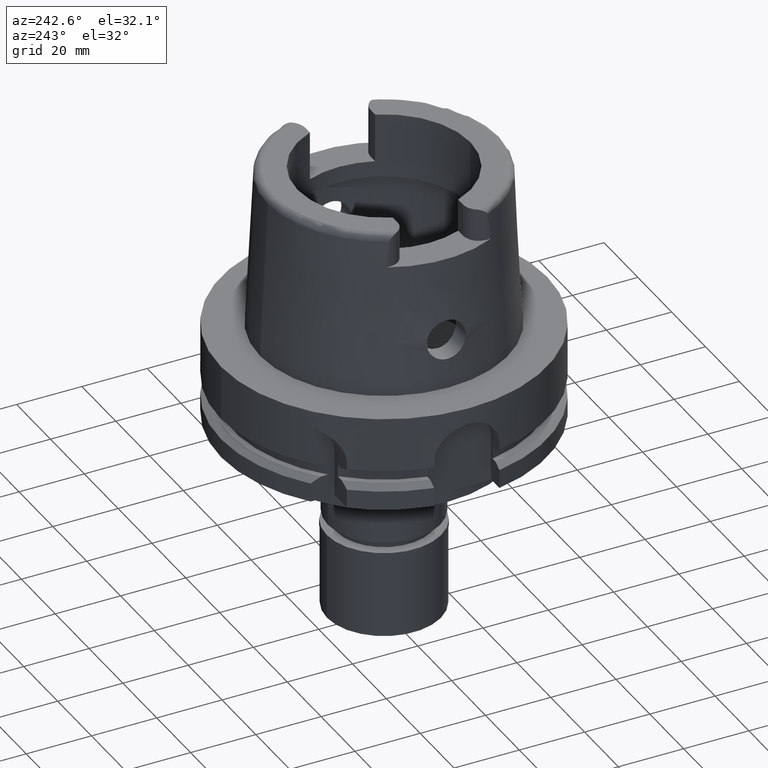
[diagram: clean part render]
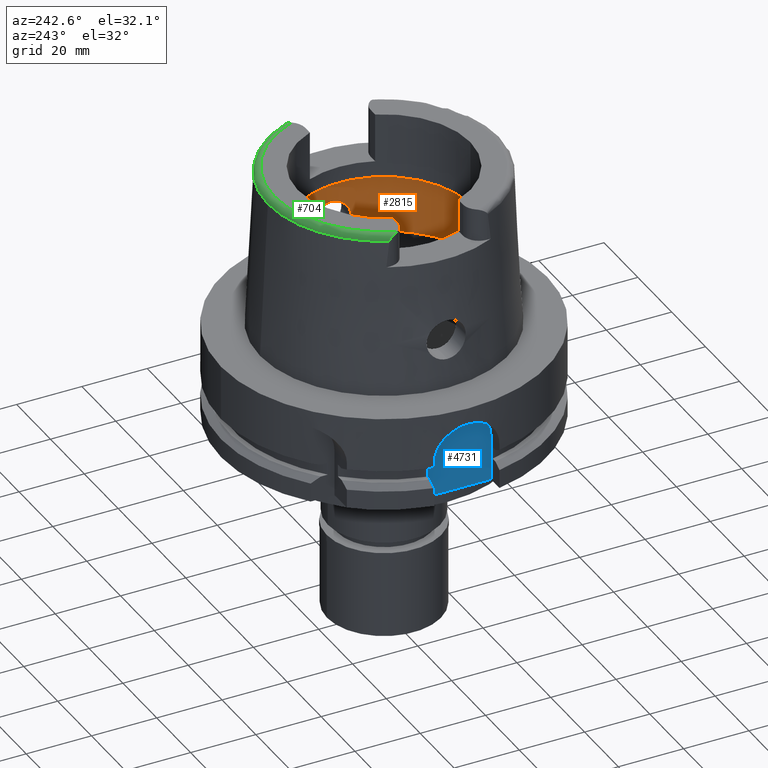
[diagram: same view with three faces highlighted in distinct colors, each labeled with its STEP entity id]
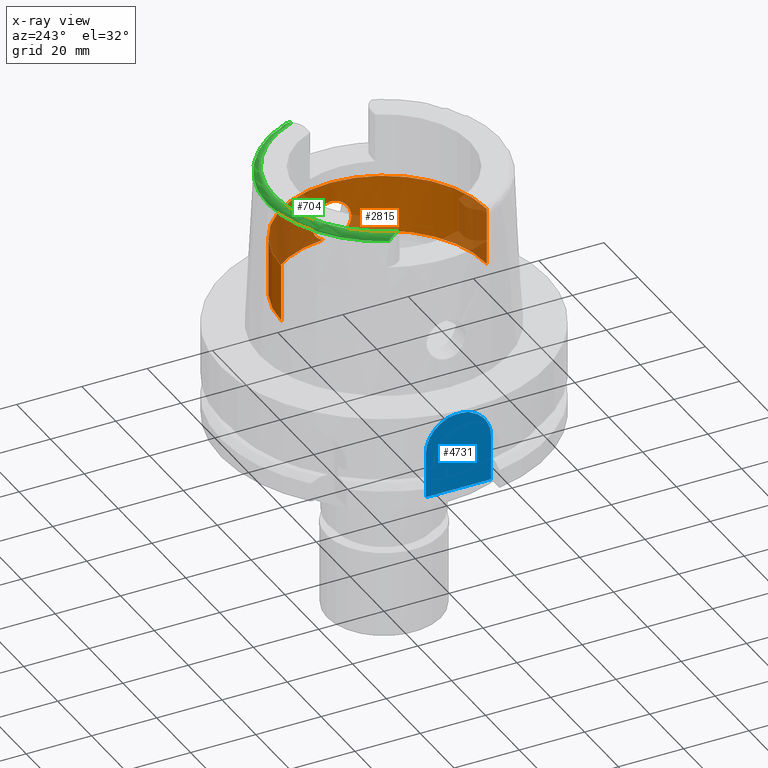
[diagram: x-ray of the same camera — body ghosted, the three highlighted faces saturated]
A machine part, auxiliary view with three faces highlighted in distinct colors.
The next image is the same camera in x-ray (body ghosted, the three faces saturated) — at least one of them is partly hidden behind the body in this view.
Their STEP definitions:

[orange] entity #2815 — the highlighted cylindrical surface (partial cylindrical patch) has radius 31.5 mm, axis along (0, 0, 1).
#38 = CARTESIAN_POINT ( 'NONE',  ( 31.47874558910605813, 1.163168847217786794, 20.88862972025669151 ) ) ;
#42 = CARTESIAN_POINT ( 'NONE',  ( 30.94672255387642679, -5.878067229968918284, 16.20351163453197074 ) ) ;
#65 = ORIENTED_EDGE ( 'NONE', *, *, #779, .T. ) ;
#73 = CARTESIAN_POINT ( 'NONE',  ( 31.43292592600813862, -2.053061800973593698, 20.63786932992139711 ) ) ;
#99 = CARTESIAN_POINT ( 'NONE',  ( 31.04450158700868556, 5.337586493322367787, 12.25952045412896574 ) ) ;
#102 = CARTESIAN_POINT ( 'NONE',  ( 30.92535286743776979, -5.990463055333783871, 15.37858414246078809 ) ) ;
#122 = CARTESIAN_POINT ( 'NONE',  ( 31.02180559228969159, 5.468439455761366474, 12.52806689287831254 ) ) ;
#125 = CARTESIAN_POINT ( 'NONE',  ( 31.20787290848237561, -4.280674023772720105, 19.20776015787617297 ) ) ;
#129 = EDGE_CURVE ( 'NONE', #5389, #829, #167, .T. ) ;
#145 = CARTESIAN_POINT ( 'NONE',  ( 31.40918884336000616, 2.390158196043999705, 9.496624327025999790 ) ) ;
#150 = CARTESIAN_POINT ( 'NONE',  ( 30.99217687288381029, -5.635555474660773889, 12.91281347001296709 ) ) ;
#167 = B_SPLINE_CURVE_WITH_KNOTS ( 'NONE', 3,
 ( #2611, #1767, #3495, #38, #4670, #1737, #1320, #4337, #815, #484, #368, #393, #3912, #5208, #2073, #3064, #1352, #4788, #2095, #840, #2636, #3798, #3824, #5545, #2548, #1679, #4865, #3199, #3542, #2741, #4363, #3569, #1895, #627, #5344, #5321, #3942, #2217, #2270, #4442, #1006, #3172, #2712, #3625, #2663, #545, #5258, #1480, #5291, #4915, #4842, #4888, #1059, #514, #5235, #595, #2295, #569, #4394, #3086, #1402, #4418, #122, #4056, #4469, #3995, #99, #3117, #1030, #1793, #4026, #2325, #201, #4812, #2693, #1814, #1434, #3520, #1377, #952, #177, #2249, #1869, #1459, #3970, #985, #145 ),
 .UNSPECIFIED., .F., .F.,
 ( 4, 2, 2, 1, 1, 1, 1, 2, 2, 2, 2, 2, 1, 1, 2, 2, 2, 2, 1, 1, 1, 2, 2, 2, 2, 1, 1, 1, 2, 2, 2, 2, 1, 1, 2, 2, 2, 2, 1, 1, 1, 1, 1, 2, 2, 2, 2, 2, 1, 1, 2, 2, 2, 4 ),
 ( 0.0000000000000000000, 0.06250000000000578704, 0.09375000000000872913, 0.1093750000000102973, 0.1171875000000110745, 0.1210937500000114631, 0.1230468750000116712, 0.1240234375000118100, 0.1250000000000119627, 0.1875000000000150990, 0.2187500000000167921, 0.2343750000000174305, 0.2421875000000175693, 0.2460937500000176525, 0.2480468750000176803, 0.2500000000000177081, 0.3125000000000189293, 0.3437500000000197620, 0.3593750000000204281, 0.3671875000000208167, 0.3710937500000210387, 0.3730468750000212053, 0.3750000000000213718, 0.4375000000000224820, 0.4687500000000227041, 0.4843750000000228151, 0.4921875000000229261, 0.4960937500000226485, 0.4980468750000225375, 0.5000000000000223155, 0.5625000000000149880, 0.5937500000000114353, 0.6093750000000095479, 0.6171875000000087708, 0.6210937500000083267, 0.6250000000000078826, 0.6875000000000025535, 0.7187499999999997780, 0.7343749999999983347, 0.7421874999999976685, 0.7460937499999973355, 0.7480468749999973355, 0.7490234374999973355, 0.7495117187499973355, 0.7499999999999973355, 0.8124999999999946709, 0.8437499999999933387, 0.8593749999999927836, 0.8671874999999924505, 0.8710937499999923395, 0.8730468749999923395, 0.8749999999999923395, 0.9374999999999962252, 1.000000000000000000 ),
 .UNSPECIFIED. ) ;
#177 = CARTESIAN_POINT ( 'NONE',  ( 31.22973461480939505, 4.117282609205624055, 10.63557452481846077 ) ) ;
#201 = CARTESIAN_POINT ( 'NONE',  ( 31.13176939723117798, 4.810056233430134220, 11.40937601338563034 ) ) ;
#203 = ORIENTED_EDGE ( 'NONE', *, *, #3340, .F. ) ;
#261 = LINE ( 'NONE', #2016, #782 ) ;
#282 = CARTESIAN_POINT ( 'NONE',  ( 31.43580740186122213, -2.008394359664276152, 20.65388733061221060 ) ) ;
#312 = CARTESIAN_POINT ( 'NONE',  ( 31.40918884336000616, -2.390158196043999705, 9.496624327025999790 ) ) ;
#368 = CARTESIAN_POINT ( 'NONE',  ( 31.43755868166761402, 1.980803739191840718, 20.66360724681869598 ) ) ;
#371 = CARTESIAN_POINT ( 'NONE',  ( 31.36782062840180885, -2.891023551624700705, 9.731271290438993304 ) ) ;
#393 = CARTESIAN_POINT ( 'NONE',  ( 31.43689967039234290, 1.991226371612470958, 20.65995123975539371 ) ) ;
#462 = CARTESIAN_POINT ( 'NONE',  ( 31.39506588945173959, -2.572651748916380487, 20.42285444250997628 ) ) ;
#472 = DIRECTION ( 'NONE',  ( 0.0000000000000000000, 0.0000000000000000000, -1.000000000000000000 ) ) ;
#484 = CARTESIAN_POINT ( 'NONE',  ( 31.43854330678166065, 1.965166895117789636, 20.66906803204774334 ) ) ;
#488 = CARTESIAN_POINT ( 'NONE',  ( 30.93438124697991043, -5.942638895795545828, 14.17205690234811932 ) ) ;
#514 = CARTESIAN_POINT ( 'NONE',  ( 30.93075577427284628, 5.961638378843584718, 14.32029591724610640 ) ) ;
#515 = AXIS2_PLACEMENT_3D ( 'NONE', #2257, #5269, #1466 ) ;
#521 = CARTESIAN_POINT ( 'NONE',  ( 31.04261222707554424, -5.349723905541477365, 17.71820319676292499 ) ) ;
#545 = CARTESIAN_POINT ( 'NONE',  ( 30.94741234270160035, 5.874433354930785001, 16.22111584306200882 ) ) ;
#550 = CARTESIAN_POINT ( 'NONE',  ( 31.15844453155933991, -4.626422218387051366, 18.82105635665203280 ) ) ;
#569 = CARTESIAN_POINT ( 'NONE',  ( 30.94254367398103867, 5.899961111620847909, 13.86544668831931837 ) ) ;
#576 = CARTESIAN_POINT ( 'NONE',  ( 30.92192551516655996, -6.008205602915460020, 14.86824373236102126 ) ) ;
#595 = CARTESIAN_POINT ( 'NONE',  ( 30.93326008766413437, 5.948517949213572464, 14.21541027490142817 ) ) ;
#620 = CIRCLE ( 'NONE', #1946, 31.49999999999998934 ) ;
#627 = CARTESIAN_POINT ( 'NONE',  ( 31.08256516695222516, 5.111235353044313534, 18.14251312328488197 ) ) ;
#736 = LINE ( 'NONE', #1599, #3484 ) ;
#779 = EDGE_CURVE ( 'NONE', #2774, #829, #3760, .T. ) ;
#782 = VECTOR ( 'NONE', #1520, 1000.000000000000000 ) ;
#789 = CARTESIAN_POINT ( 'NONE',  ( 31.04580552186705944, -5.330009509822671632, 12.24482011624196076 ) ) ;
#815 = CARTESIAN_POINT ( 'NONE',  ( 31.44081352278902486, 1.928661169277470444, 20.68164741222877012 ) ) ;
#818 = CARTESIAN_POINT ( 'NONE',  ( 31.39146061240509411, -2.623125768978244121, 9.597803927865333762 ) ) ;
#829 = VERTEX_POINT ( 'NONE', #3926 ) ;
#840 = CARTESIAN_POINT ( 'NONE',  ( 31.29470788927109837, 3.589993723882074494, 19.80773412175094350 ) ) ;
#844 = DIRECTION ( 'NONE',  ( 0.0000000000000000000, -4.980251297749999745E-14, 1.000000000000000000 ) ) ;
#875 = CARTESIAN_POINT ( 'NONE',  ( 30.93370286351003173, -5.946630732572538491, 15.80304028588403575 ) ) ;
#895 = FACE_OUTER_BOUND ( 'NONE', #1272, .T. ) ;
#905 = CARTESIAN_POINT ( 'NONE',  ( 31.42012705331661238, -2.242244402032389505, 20.56623168401118917 ) ) ;
#932 = CARTESIAN_POINT ( 'NONE',  ( 30.95645471741926968, -5.827473701086501201, 13.56223778851745010 ) ) ;
#952 = CARTESIAN_POINT ( 'NONE',  ( 31.22685751023950473, 4.139092312522533845, 10.65625269601262914 ) ) ;
#959 = CARTESIAN_POINT ( 'NONE',  ( 31.07980863119683335, -5.128016849626785501, 18.11504069156489649 ) ) ;
#985 = CARTESIAN_POINT ( 'NONE',  ( 31.39148177865057221, 2.622847622281871960, 9.597683126625238259 ) ) ;
#989 = CARTESIAN_POINT ( 'NONE',  ( 31.04516177683893829, -5.333749989910316458, 12.25206999099167149 ) ) ;
#1006 = CARTESIAN_POINT ( 'NONE',  ( 30.96377786480246996, 5.788304845652459285, 16.58179014601926937 ) ) ;
#1020 = DIRECTION ( 'NONE',  ( 0.0000000000000000000, 1.000000000000000000, 0.0000000000000000000 ) ) ;
#1030 = CARTESIAN_POINT ( 'NONE',  ( 31.04563232348696644, 5.331007802522903738, 12.24675390439029954 ) ) ;
#1059 = CARTESIAN_POINT ( 'NONE',  ( 30.92775918057953533, 5.977375591860287329, 14.46753585063769521 ) ) ;
#1091 = CARTESIAN_POINT ( 'NONE',  ( 31.43628430028886456, -2.000932379081505896, 20.65653517878615730 ) ) ;
#1092 = CARTESIAN_POINT ( 'NONE',  ( 0.0000000000000000000, -31.50000000000000000, 9.496624327025999790 ) ) ;
#1179 = CARTESIAN_POINT ( 'NONE',  ( 31.23445860055042189, -4.081273795967087281, 10.60188860883265605 ) ) ;
#1203 = CARTESIAN_POINT ( 'NONE',  ( 31.04849521275155766, -5.314406029858269598, 12.21479139776941558 ) ) ;
#1272 = EDGE_LOOP ( 'NONE', ( #5245, #3135, #5342, #2064, #65, #1597, #203 ) ) ;
#1315 = DIRECTION ( 'NONE',  ( 0.0000000000000000000, 0.0000000000000000000, 1.000000000000000000 ) ) ;
#1320 = CARTESIAN_POINT ( 'NONE',  ( 31.45367202625462610, 1.709134585515098337, 20.75259068527753925 ) ) ;
#1326 = CARTESIAN_POINT ( 'NONE',  ( 31.41206025058010454, -2.351907455749163045, 20.52041693634227570 ) ) ;
#1339 = AXIS2_PLACEMENT_3D ( 'NONE', #4855, #472, #1020 ) ;
#1347 = DIRECTION ( 'NONE',  ( 0.0000000000000000000, 1.000000000000000000, 0.0000000000000000000 ) ) ;
#1352 = CARTESIAN_POINT ( 'NONE',  ( 31.34098326075946517, 3.160832990455155755, 20.10333258452397587 ) ) ;
#1351 = CARTESIAN_POINT ( 'NONE',  ( 31.50000000000000000, 0.0000000000000000000, 21.00000000000000000 ) ) ;
#1356 = CARTESIAN_POINT ( 'NONE',  ( 31.02203372859835540, -5.468932823565594070, 17.47456495347836736 ) ) ;
#1377 = CARTESIAN_POINT ( 'NONE',  ( 31.22256444755808857, 4.171537842570713472, 10.68724826968741404 ) ) ;
#1380 = CARTESIAN_POINT ( 'NONE',  ( 30.94471845028229140, -5.888625877988109103, 16.15103748915412396 ) ) ;
#1402 = CARTESIAN_POINT ( 'NONE',  ( 30.99449938851969932, 5.622023241031855356, 12.89663710063988589 ) ) ;
#1408 = CARTESIAN_POINT ( 'NONE',  ( 31.17269815817921241, -4.529106529723409658, 18.93539766968429916 ) ) ;
#1434 = CARTESIAN_POINT ( 'NONE',  ( 31.20452603027423422, 4.305525215636873071, 10.82081234931328417 ) ) ;
#1438 = CARTESIAN_POINT ( 'NONE',  ( 31.15165116582573290, -4.671928877724193185, 18.76500968965827809 ) ) ;
#1459 = CARTESIAN_POINT ( 'NONE',  ( 31.30906385887614363, 3.469210792607136273, 10.09274046695978022 ) ) ;
#1461 = VERTEX_POINT ( 'NONE', #5251 ) ;
#1466 = DIRECTION ( 'NONE',  ( 0.0000000000000000000, -1.000000000000000000, 0.0000000000000000000 ) ) ;
#1480 = CARTESIAN_POINT ( 'NONE',  ( 30.93366836890996652, 5.946777008164946032, 15.86757646416174516 ) ) ;
#1520 = DIRECTION ( 'NONE',  ( 0.0000000000000000000, 4.980251297749999745E-14, 1.000000000000000000 ) ) ;
#1597 = ORIENTED_EDGE ( 'NONE', *, *, #129, .F. ) ;
#1599 = CARTESIAN_POINT ( 'NONE',  ( 0.0000000000000000000, 31.50000000000000000, 9.496624327025999790 ) ) ;
#1625 = CARTESIAN_POINT ( 'NONE',  ( 31.06312987277160076, -5.229652718247213450, 12.05819412604409102 ) ) ;
#1679 = CARTESIAN_POINT ( 'NONE',  ( 31.23935307546496531, 4.052756158100457640, 19.43771802290995865 ) ) ;
#1737 = CARTESIAN_POINT ( 'NONE',  ( 31.46014797957387543, 1.583266329242605464, 20.78798658302804370 ) ) ;
#1740 = CARTESIAN_POINT ( 'NONE',  ( 31.17028383885542908, -4.545699291933996911, 18.91621995340540252 ) ) ;
#1767 = CARTESIAN_POINT ( 'NONE',  ( 31.50000000000000000, 0.3265962406052352884, 20.99999999999999289 ) ) ;
#1772 = CARTESIAN_POINT ( 'NONE',  ( 31.13008563475115054, -4.813909695520043108, 18.58240829295809249 ) ) ;
#1793 = CARTESIAN_POINT ( 'NONE',  ( 31.04596355573410094, 5.329079610203444339, 12.24302468070716721 ) ) ;
#1797 = CARTESIAN_POINT ( 'NONE',  ( 30.94649890802219261, -5.879607878113259467, 13.80130751314860404 ) ) ;
#1814 = CARTESIAN_POINT ( 'NONE',  ( 31.18852867656658034, 4.421787099855168712, 10.94285493824738609 ) ) ;
#1818 = CARTESIAN_POINT ( 'NONE',  ( 30.92786878548973206, -5.977295764398133926, 15.54872436270301961 ) ) ;
#1846 = CARTESIAN_POINT ( 'NONE',  ( 31.38258864115900337, -2.721717699675906488, 20.34989773176234351 ) ) ;
#1869 = CARTESIAN_POINT ( 'NONE',  ( 31.27377875877902724, 3.781443780598645166, 10.32186086352095522 ) ) ;
#1895 = CARTESIAN_POINT ( 'NONE',  ( 31.08533738999872753, 5.094319665982874668, 18.16997099139622307 ) ) ;
#1946 = AXIS2_PLACEMENT_3D ( 'NONE', #2823, #5343, #4967 ) ;
#2016 = CARTESIAN_POINT ( 'NONE',  ( 0.0000000000000000000, -31.50000000000000000, 9.496624327025999790 ) ) ;
#2051 = CARTESIAN_POINT ( 'NONE',  ( 31.09978369765944350, -5.012243995349237480, 11.69745197005562609 ) ) ;
#2064 = ORIENTED_EDGE ( 'NONE', *, *, #3295, .F. ) ;
#2073 = CARTESIAN_POINT ( 'NONE',  ( 31.39716518592526739, 2.554724372867817284, 20.43974694424236560 ) ) ;
#2095 = CARTESIAN_POINT ( 'NONE',  ( 31.30795662208825902, 3.472457794297063138, 19.89402555762321612 ) ) ;
#2101 = CARTESIAN_POINT ( 'NONE',  ( 31.23702146046185746, -4.061585715134611085, 10.58370052132127093 ) ) ;
#2166 = CARTESIAN_POINT ( 'NONE',  ( 30.93713495275573422, -5.928570940594394933, 15.92997444694900544 ) ) ;
#2170 = EDGE_CURVE ( 'NONE', #5158, #1461, #4282, .T. ) ;
#2192 = CARTESIAN_POINT ( 'NONE',  ( 31.27139147716018286, -3.787807879402345090, 19.65323826744310409 ) ) ;
#2217 = CARTESIAN_POINT ( 'NONE',  ( 31.01914594644279077, 5.486409128956460712, 17.45285282219157352 ) ) ;
#2223 = CARTESIAN_POINT ( 'NONE',  ( 31.16668483948164692, -4.570370018734714712, 18.88752152639057513 ) ) ;
#2249 = CARTESIAN_POINT ( 'NONE',  ( 31.23134854963936746, 4.105008081818940724, 10.62403283473820537 ) ) ;
#2252 = CARTESIAN_POINT ( 'NONE',  ( 31.04518246642719603, -5.333629881269938089, 12.25183792769208857 ) ) ;
#2257 = CARTESIAN_POINT ( 'NONE',  ( 0.0000000000000000000, 0.0000000000000000000, 27.11662432702999936 ) ) ;
#2270 = CARTESIAN_POINT ( 'NONE',  ( 30.98609604534248518, 5.668934856799063837, 16.97293451837005662 ) ) ;
#2275 = CARTESIAN_POINT ( 'NONE',  ( 30.93486185954110113, -5.940132102525153002, 14.15429582565623434 ) ) ;
#2295 = CARTESIAN_POINT ( 'NONE',  ( 30.93383971765835483, 5.945484484128846780, 14.19278739616230745 ) ) ;
#2325 = CARTESIAN_POINT ( 'NONE',  ( 31.08513230758910240, 5.105000103459857108, 11.82890235537959711 ) ) ;
#2467 = CARTESIAN_POINT ( 'NONE',  ( 31.14651949957509913, -4.717000810010947731, 11.27608313809614060 ) ) ;
#2526 = CARTESIAN_POINT ( 'NONE',  ( 31.30723921603637550, -3.477879983421235721, 10.10696046473086263 ) ) ;
#2548 = CARTESIAN_POINT ( 'NONE',  ( 31.27264848447983780, 3.777739482066704735, 19.66141607343364939 ) ) ;
#2585 = CARTESIAN_POINT ( 'NONE',  ( 31.26626536224069142, -3.829259252926312751, 19.61926162041034871 ) ) ;
#2611 = CARTESIAN_POINT ( 'NONE',  ( 31.50000000000000000, 0.0000000000000000000, 21.00000000000000000 ) ) ;
#2614 = CARTESIAN_POINT ( 'NONE',  ( 31.06106708662288085, -5.240762056636493860, 17.92174044945252476 ) ) ;
#2636 = CARTESIAN_POINT ( 'NONE',  ( 31.28796013096030038, 3.648818263364443926, 19.76344793464652128 ) ) ;
#2640 = CARTESIAN_POINT ( 'NONE',  ( 31.17411222003033444, -4.519359797569359571, 18.94658104249403863 ) ) ;
#2663 = CARTESIAN_POINT ( 'NONE',  ( 30.94815690037108524, 5.870517653931324631, 16.23980386294811851 ) ) ;
#2670 = CARTESIAN_POINT ( 'NONE',  ( 30.93763820913249774, -5.925677873714769284, 14.05709894744416744 ) ) ;
#2693 = CARTESIAN_POINT ( 'NONE',  ( 31.17834578312779925, 4.493915757153431834, 11.02314022811174254 ) ) ;
#2697 = CARTESIAN_POINT ( 'NONE',  ( 31.27230361696517491, -3.780408582654312788, 19.65925451252761391 ) ) ;
#2712 = CARTESIAN_POINT ( 'NONE',  ( 30.95203781910421981, 5.850124880644835379, 16.33365850913638084 ) ) ;
#2741 = CARTESIAN_POINT ( 'NONE',  ( 31.11661974408265863, 4.898559201629780091, 18.46576277368806274 ) ) ;
#2774 = VERTEX_POINT ( 'NONE', #4527 ) ;
#2815 = ADVANCED_FACE ( 'NONE', ( #895 ), #5203, .F. ) ;
#2823 = CARTESIAN_POINT ( 'NONE',  ( 0.0000000000000000000, 0.0000000000000000000, 9.496624327025999790 ) ) ;
#2896 = CARTESIAN_POINT ( 'NONE',  ( 31.18535820715910134, -4.455216067983686301, 10.95196712352743340 ) ) ;
#3041 = CARTESIAN_POINT ( 'NONE',  ( 30.94204039478807999, -5.902734237592781597, 16.07746663559120393 ) ) ;
#3064 = CARTESIAN_POINT ( 'NONE',  ( 31.35601587726859307, 3.006835873240657708, 20.19502684218982225 ) ) ;
#3067 = CARTESIAN_POINT ( 'NONE',  ( 31.19149875046775477, -4.399251198312618349, 19.08362639551930684 ) ) ;
#3086 = CARTESIAN_POINT ( 'NONE',  ( 30.98388440005876632, 5.680261244588916902, 13.06003928529672109 ) ) ;
#3089 = CARTESIAN_POINT ( 'NONE',  ( 31.06682395068736113, -5.206406636012099298, 17.98281840373581630 ) ) ;
#3117 = CARTESIAN_POINT ( 'NONE',  ( 31.04517964692248100, 5.333641957041932002, 12.25186031511641715 ) ) ;
#3126 = CARTESIAN_POINT ( 'NONE',  ( 31.25908976494304170, -3.886856122120993184, 19.57116691671090436 ) ) ;
#3135 = ORIENTED_EDGE ( 'NONE', *, *, #5133, .T. ) ;
#3172 = CARTESIAN_POINT ( 'NONE',  ( 30.95796386001655875, 5.818990336510894146, 16.46631375592825464 ) ) ;
#3199 = CARTESIAN_POINT ( 'NONE',  ( 31.15637887645893400, 4.639267711901428726, 18.80877419886862256 ) ) ;
#3207 = CARTESIAN_POINT ( 'NONE',  ( 31.50000000000000000, 0.0000000000000000000, 21.00000000000000000 ) ) ;
#3260 = CARTESIAN_POINT ( 'NONE',  ( 31.49999999999999289, -0.6498052871861674795, 20.99999999999999645 ) ) ;
#3262 = B_SPLINE_CURVE_WITH_KNOTS ( 'NONE', 3,
 ( #312, #818, #371, #5551, #2526, #3745, #5464, #4255, #3327, #5036, #2101, #1179, #3830, #2896, #2467, #2051, #3776, #5495, #1625, #3352, #5059, #1203, #4644, #789, #3976, #2252, #989, #4791, #150, #4816, #932, #1797, #3915, #2670, #4366, #2275, #488, #3577, #576, #102, #1818, #875, #2166, #3041, #1380, #3887, #42, #5182, #5299, #3947, #3545, #1356, #521, #5214, #2614, #3089, #5263, #4314, #3524, #959, #4734, #4423, #5238, #1772, #4399, #1438, #550, #2223, #1740, #1408, #2640, #3067, #125, #3501, #4766, #3126, #2585, #4846, #2192, #2697, #3465, #3999, #1846, #462, #1326, #905, #4341, #73, #4530, #282, #1091, #5327, #3260, #3207 ),
 .UNSPECIFIED., .F., .F.,
 ( 4, 2, 2, 2, 1, 1, 2, 2, 2, 2, 2, 1, 1, 1, 1, 2, 2, 2, 2, 1, 1, 2, 2, 2, 2, 1, 1, 1, 2, 2, 2, 2, 2, 1, 1, 1, 2, 2, 2, 2, 1, 1, 2, 2, 2, 1, 1, 1, 2, 2, 2, 2, 1, 1, 1, 2, 2, 4 ),
 ( 0.0000000000000000000, 0.06250000000000201228, 0.09375000000000308087, 0.1093750000000036082, 0.1171875000000038997, 0.1210937500000039552, 0.1230468750000038997, 0.1250000000000038580, 0.1875000000000082157, 0.2187500000000102973, 0.2343750000000111577, 0.2421875000000114908, 0.2460937500000117129, 0.2480468750000118794, 0.2490234375000119904, 0.2495117187500120737, 0.2500000000000121569, 0.3125000000000102141, 0.3437500000000092149, 0.3593750000000088818, 0.3671875000000087153, 0.3710937500000087708, 0.3750000000000088263, 0.4375000000000113243, 0.4687500000000125455, 0.4843750000000131561, 0.4921875000000131561, 0.4960937500000132117, 0.4980468750000135447, 0.5000000000000138778, 0.5625000000000101030, 0.5937500000000084377, 0.6093750000000079936, 0.6171875000000079936, 0.6210937500000082157, 0.6230468750000081046, 0.6240234375000082157, 0.6250000000000083267, 0.6562500000000097700, 0.6718750000000107692, 0.6796875000000112133, 0.6835937500000112133, 0.6855468750000111022, 0.6875000000000108802, 0.7187500000000119904, 0.7343750000000128786, 0.7421875000000132117, 0.7460937500000131006, 0.7480468750000131006, 0.7500000000000129896, 0.8125000000000073275, 0.8437500000000046629, 0.8593750000000032196, 0.8671875000000025535, 0.8710937500000023315, 0.8730468750000022204, 0.8750000000000022204, 1.000000000000000000 ),
 .UNSPECIFIED. ) ;
#3295 = EDGE_CURVE ( 'NONE', #2774, #1461, #736, .T. ) ;
#3327 = CARTESIAN_POINT ( 'NONE',  ( 31.24965679093259752, -3.963205240358120385, 10.49468560561178165 ) ) ;
#3340 = EDGE_CURVE ( 'NONE', #3712, #5389, #3262, .T. ) ;
#3352 = CARTESIAN_POINT ( 'NONE',  ( 31.05576676959032767, -5.272331913579801466, 12.13584418520466457 ) ) ;
#3465 = CARTESIAN_POINT ( 'NONE',  ( 31.30987333183056620, -3.474912180316918953, 19.90612368352197237 ) ) ;
#3484 = VECTOR ( 'NONE', #844, 1000.000000000000000 ) ;
#3495 = CARTESIAN_POINT ( 'NONE',  ( 31.49468639727652430, 0.6600478036744353849, 20.97327580935100855 ) ) ;
#3501 = CARTESIAN_POINT ( 'NONE',  ( 31.23244969249694947, -4.095160865333784095, 19.38600175536237913 ) ) ;
#3520 = CARTESIAN_POINT ( 'NONE',  ( 31.21270546051544059, 4.245377335050756429, 10.75938955244244966 ) ) ;
#3524 = CARTESIAN_POINT ( 'NONE',  ( 31.07879303190361142, -5.134177756535720505, 18.10487585652874998 ) ) ;
#3542 = CARTESIAN_POINT ( 'NONE',  ( 31.14017191140827734, 4.746565958270996255, 18.67419202345196538 ) ) ;
#3545 = CARTESIAN_POINT ( 'NONE',  ( 31.00962084042992473, -5.538934155339543253, 17.31290034899251751 ) ) ;
#3569 = CARTESIAN_POINT ( 'NONE',  ( 31.09184737889171046, 5.054334646796275088, 18.23371876610373477 ) ) ;
#3577 = CARTESIAN_POINT ( 'NONE',  ( 30.92513448283202493, -5.990970959355716552, 14.52813924759428943 ) ) ;
#3586 = CARTESIAN_POINT ( 'NONE',  ( 31.40918884336000616, -2.390158196043999705, 9.496624327025999790 ) ) ;
#3625 = CARTESIAN_POINT ( 'NONE',  ( 30.94928903981584511, 5.864565785229554962, 16.26787633989585302 ) ) ;
#3712 = VERTEX_POINT ( 'NONE', #3586 ) ;
#3745 = CARTESIAN_POINT ( 'NONE',  ( 31.28064159846134018, -3.709043366195097668, 10.28275837211179322 ) ) ;
#3760 = CIRCLE ( 'NONE', #1339, 31.50000000000000000 ) ;
#3776 = CARTESIAN_POINT ( 'NONE',  ( 31.08612547359761891, -5.094462603868848305, 11.82747302590551186 ) ) ;
#3798 = CARTESIAN_POINT ( 'NONE',  ( 31.27987181043555864, 3.717459030491058414, 19.70973412740572428 ) ) ;
#3824 = CARTESIAN_POINT ( 'NONE',  ( 31.27635911539017144, 3.746869393904170398, 19.68627013498856826 ) ) ;
#3830 = CARTESIAN_POINT ( 'NONE',  ( 31.23333217773408066, -4.089894884337088143, 10.60989865316917857 ) ) ;
#3887 = CARTESIAN_POINT ( 'NONE',  ( 30.94591447431082898, -5.882324645877303304, 16.18252753667420052 ) ) ;
#3912 = CARTESIAN_POINT ( 'NONE',  ( 31.43650088341377113, 1.997503128707136311, 20.65773811380228864 ) ) ;
#3915 = CARTESIAN_POINT ( 'NONE',  ( 30.94201243173822036, -5.902955835409339436, 13.92008208516523915 ) ) ;
#3926 = CARTESIAN_POINT ( 'NONE',  ( 31.40918884336000616, 2.390158196043999705, 9.496624327025999790 ) ) ;
#3942 = CARTESIAN_POINT ( 'NONE',  ( 31.04640261755326591, 5.330469855179140737, 17.78041626067215475 ) ) ;
#3947 = CARTESIAN_POINT ( 'NONE',  ( 30.97630050837375748, -5.723211167293110968, 16.83359001437023039 ) ) ;
#3970 = CARTESIAN_POINT ( 'NONE',  ( 31.36791536881191433, 2.890007043022194466, 9.730799022675443055 ) ) ;
#3976 = CARTESIAN_POINT ( 'NONE',  ( 31.04543112599281685, -5.332184783633039160, 12.24903509305560512 ) ) ;
#3995 = CARTESIAN_POINT ( 'NONE',  ( 31.04292613174062865, 5.346743584188100584, 12.27739768103853812 ) ) ;
#3999 = CARTESIAN_POINT ( 'NONE',  ( 31.34171387365918804, -3.171468574757371428, 20.10474279347218385 ) ) ;
#4026 = CARTESIAN_POINT ( 'NONE',  ( 31.06175305902263517, 5.237146513530096748, 12.06543557036403413 ) ) ;
#4056 = CARTESIAN_POINT ( 'NONE',  ( 31.03366056699259801, 5.400379988046000612, 12.38475010244732566 ) ) ;
#4255 = CARTESIAN_POINT ( 'NONE',  ( 31.25699897888671686, -3.904325186931791869, 10.44381035814538983 ) ) ;
#4282 = CIRCLE ( 'NONE', #515, 31.50000000000000000 ) ;
#4314 = CARTESIAN_POINT ( 'NONE',  ( 31.07727345946035058, -5.143389132729952351, 18.08962696760957201 ) ) ;
#4337 = CARTESIAN_POINT ( 'NONE',  ( 31.44524498443533034, 1.855574771176247362, 20.70615738834728248 ) ) ;
#4341 = CARTESIAN_POINT ( 'NONE',  ( 31.42878516197734129, -2.115843486957157182, 20.61478208669446133 ) ) ;
#4363 = CARTESIAN_POINT ( 'NONE',  ( 31.10503323048242663, 4.972318277572205680, 18.35990997077450260 ) ) ;
#4366 = CARTESIAN_POINT ( 'NONE',  ( 30.93594782795692311, -5.934474211582891456, 14.11546578471493696 ) ) ;
#4394 = CARTESIAN_POINT ( 'NONE',  ( 30.95595084008492393, 5.831155633468323884, 13.54642320335177352 ) ) ;
#4399 = CARTESIAN_POINT ( 'NONE',  ( 31.13842410814880424, -4.759706002454712426, 18.65432187650903018 ) ) ;
#4418 = CARTESIAN_POINT ( 'NONE',  ( 31.01237757391558603, 5.521780586435991012, 12.65100886388745316 ) ) ;
#4423 = CARTESIAN_POINT ( 'NONE',  ( 31.09270935324555651, -5.049645081410748304, 18.24349941725910185 ) ) ;
#4442 = CARTESIAN_POINT ( 'NONE',  ( 30.97638526256993430, 5.721239828891417467, 16.81481322160052372 ) ) ;
#4469 = CARTESIAN_POINT ( 'NONE',  ( 31.03980195932743769, 5.364870790163818626, 12.31316568408951007 ) ) ;
#4527 = CARTESIAN_POINT ( 'NONE',  ( 0.0000000000000000000, 31.50000000000000000, 9.496624327025999790 ) ) ;
#4530 = CARTESIAN_POINT ( 'NONE',  ( 31.43466019124283051, -2.026248663974419717, 20.64751327602958852 ) ) ;
#4644 = CARTESIAN_POINT ( 'NONE',  ( 31.04668895792094219, -5.324880292024103845, 12.23491020473535507 ) ) ;
#4670 = CARTESIAN_POINT ( 'NONE',  ( 31.47210358570171707, 1.331349605764394761, 20.85299855166005045 ) ) ;
#4669 = CARTESIAN_POINT ( 'NONE',  ( 0.0000000000000000000, -31.50000000000000000, 27.11662432702999936 ) ) ;
#4734 = CARTESIAN_POINT ( 'NONE',  ( 31.08045676647850186, -5.124081587924576908, 18.12150710941341814 ) ) ;
#4738 = AXIS2_PLACEMENT_3D ( 'NONE', #5510, #1315, #1347 ) ;
#4766 = CARTESIAN_POINT ( 'NONE',  ( 31.24474197125239883, -4.000493361328522290, 19.47313366057530004 ) ) ;
#4788 = CARTESIAN_POINT ( 'NONE',  ( 31.31646006556049144, 3.394252922222743774, 19.94851131810727551 ) ) ;
#4791 = CARTESIAN_POINT ( 'NONE',  ( 31.01593509159112827, -5.503690790281532408, 12.58231532329521407 ) ) ;
#4812 = CARTESIAN_POINT ( 'NONE',  ( 31.14924312991058386, 4.695464110283305459, 11.25895914220900806 ) ) ;
#4816 = CARTESIAN_POINT ( 'NONE',  ( 30.96440239945623318, -5.785463449087158594, 13.40082178635053545 ) ) ;
#4842 = CARTESIAN_POINT ( 'NONE',  ( 30.92339287362485223, 6.000473440599974673, 14.84816556680505073 ) ) ;
#4846 = CARTESIAN_POINT ( 'NONE',  ( 31.26934098260802841, -3.804410238327101457, 19.63967430358761845 ) ) ;
#4855 = CARTESIAN_POINT ( 'NONE',  ( 0.0000000000000000000, 0.0000000000000000000, 9.496624327025999790 ) ) ;
#4865 = CARTESIAN_POINT ( 'NONE',  ( 31.20651633211162235, 4.300661680387077190, 19.19792476272313309 ) ) ;
#4888 = CARTESIAN_POINT ( 'NONE',  ( 30.92596126085772212, 5.986865395013795776, 14.59425803322964832 ) ) ;
#4915 = CARTESIAN_POINT ( 'NONE',  ( 30.92305055175074102, 6.002380153923743578, 15.01805545309994194 ) ) ;
#4967 = DIRECTION ( 'NONE',  ( 0.9971171061384295209, -0.07587803796965221503, 0.0000000000000000000 ) ) ;
#5036 = CARTESIAN_POINT ( 'NONE',  ( 31.24084843074002293, -4.032057752978302823, 10.55660562209947351 ) ) ;
#5059 = CARTESIAN_POINT ( 'NONE',  ( 31.05226525330372667, -5.292581938407248110, 12.17336505165359561 ) ) ;
#5133 = EDGE_CURVE ( 'NONE', #5136, #5158, #261, .T. ) ;
#5136 = VERTEX_POINT ( 'NONE', #1092 ) ;
#5158 = VERTEX_POINT ( 'NONE', #4669 ) ;
#5182 = CARTESIAN_POINT ( 'NONE',  ( 30.94717908288146901, -5.875661942907484558, 16.21519003423620831 ) ) ;
#5203 = CYLINDRICAL_SURFACE ( 'NONE', #4738, 31.50000000000000000 ) ;
#5208 = CARTESIAN_POINT ( 'NONE',  ( 31.41933333720215415, 2.266795235295336219, 20.56244080657862128 ) ) ;
#5214 = CARTESIAN_POINT ( 'NONE',  ( 31.04979825427201234, -5.307620967807489265, 17.79960290310635784 ) ) ;
#5235 = CARTESIAN_POINT ( 'NONE',  ( 30.93223267600236071, 5.953898522049765774, 14.25734313577540568 ) ) ;
#5238 = CARTESIAN_POINT ( 'NONE',  ( 31.10650890971906790, -4.964752310463182994, 18.37353485709833834 ) ) ;
#5245 = ORIENTED_EDGE ( 'NONE', *, *, #5527, .T. ) ;
#5251 = CARTESIAN_POINT ( 'NONE',  ( 0.0000000000000000000, 31.50000000000000000, 27.11662432702999936 ) ) ;
#5258 = CARTESIAN_POINT ( 'NONE',  ( 30.94708979794340564, 5.876130162896149756, 16.21293380521644067 ) ) ;
#5263 = CARTESIAN_POINT ( 'NONE',  ( 31.07375457590166690, -5.164672925163843686, 18.05403569874421876 ) ) ;
#5269 = DIRECTION ( 'NONE',  ( 0.0000000000000000000, 0.0000000000000000000, 1.000000000000000000 ) ) ;
#5291 = CARTESIAN_POINT ( 'NONE',  ( 30.92613339497163594, 5.986405946840855030, 15.52774793798318242 ) ) ;
#5299 = CARTESIAN_POINT ( 'NONE',  ( 30.95931139693508882, -5.811740705842699306, 16.52181427439681016 ) ) ;
#5321 = CARTESIAN_POINT ( 'NONE',  ( 31.07989769471213748, 5.127465607151781235, 18.11596496792292044 ) ) ;
#5327 = CARTESIAN_POINT ( 'NONE',  ( 31.47898038772416029, -1.327503065966013640, 20.89336683149491236 ) ) ;
#5342 = ORIENTED_EDGE ( 'NONE', *, *, #2170, .T. ) ;
#5344 = CARTESIAN_POINT ( 'NONE',  ( 31.08072096763088510, 5.122463257871117115, 18.12417760954593504 ) ) ;
#5343 = DIRECTION ( 'NONE',  ( 0.0000000000000000000, 0.0000000000000000000, -1.000000000000000000 ) ) ;
#5389 = VERTEX_POINT ( 'NONE', #1351 ) ;
#5464 = CARTESIAN_POINT ( 'NONE',  ( 31.27140624137080138, -3.786892532808540768, 10.34490367270754518 ) ) ;
#5495 = CARTESIAN_POINT ( 'NONE',  ( 31.06851870236997470, -5.198296694716313837, 12.00294634188920462 ) ) ;
#5510 = CARTESIAN_POINT ( 'NONE',  ( 0.0000000000000000000, 0.0000000000000000000, -85.45000000000000284 ) ) ;
#5527 = EDGE_CURVE ( 'NONE', #3712, #5136, #620, .T. ) ;
#5545 = CARTESIAN_POINT ( 'NONE',  ( 31.27400703603472465, 3.766473633400921006, 19.67052827868081977 ) ) ;
#5551 = CARTESIAN_POINT ( 'NONE',  ( 31.32349302282431935, -3.326988627174414681, 10.00394890714652973 ) ) ;

[blue] entity #4731 — the highlighted planar face has unit normal (1, 0, 0).
#346 = VECTOR ( 'NONE', #1100, 1000.000000000000000 ) ;
#541 = EDGE_CURVE ( 'NONE', #3510, #1756, #4908, .T. ) ;
#543 = EDGE_LOOP ( 'NONE', ( #2215, #3503, #3277, #1267 ) ) ;
#646 = CARTESIAN_POINT ( 'NONE',  ( -44.00000000000000000, -10.00000000000000000, -29.00000000000000000 ) ) ;
#773 = AXIS2_PLACEMENT_3D ( 'NONE', #2545, #1676, #4609 ) ;
#824 = EDGE_CURVE ( 'NONE', #3510, #2885, #1366, .T. ) ;
#1100 = DIRECTION ( 'NONE',  ( 0.0000000000000000000, 1.000000000000000000, 0.0000000000000000000 ) ) ;
#1267 = ORIENTED_EDGE ( 'NONE', *, *, #541, .F. ) ;
#1366 = LINE ( 'NONE', #3896, #4131 ) ;
#1456 = EDGE_CURVE ( 'NONE', #4685, #1756, #4072, .T. ) ;
#1524 = FACE_OUTER_BOUND ( 'NONE', #543, .T. ) ;
#1676 = DIRECTION ( 'NONE',  ( 1.000000000000000000, 0.0000000000000000000, 0.0000000000000000000 ) ) ;
#1756 = VERTEX_POINT ( 'NONE', #2845 ) ;
#2034 = CIRCLE ( 'NONE', #773, 10.00000000000000000 ) ;
#2149 = VECTOR ( 'NONE', #4388, 1000.000000000000000 ) ;
#2215 = ORIENTED_EDGE ( 'NONE', *, *, #824, .T. ) ;
#2418 = DIRECTION ( 'NONE',  ( 1.000000000000000000, 0.0000000000000000000, 0.0000000000000000000 ) ) ;
#2426 = CARTESIAN_POINT ( 'NONE',  ( -44.00000000000000000, -10.00000000000000000, -15.00000000000000000 ) ) ;
#2468 = CARTESIAN_POINT ( 'NONE',  ( -44.00000000000000000, 0.0000000000000000000, 0.0000000000000000000 ) ) ;
#2545 = CARTESIAN_POINT ( 'NONE',  ( -44.00000000000000000, 0.0000000000000000000, -15.00000000000000000 ) ) ;
#2845 = CARTESIAN_POINT ( 'NONE',  ( -44.00000000000000000, 10.00000000000000000, -29.00000000000000000 ) ) ;
#2885 = VERTEX_POINT ( 'NONE', #2426 ) ;
#3004 = CARTESIAN_POINT ( 'NONE',  ( -44.00000000000000000, -10.00000000000000000, -29.00000000000000000 ) ) ;
#3267 = PLANE ( 'NONE',  #3374 ) ;
#3277 = ORIENTED_EDGE ( 'NONE', *, *, #1456, .T. ) ;
#3374 = AXIS2_PLACEMENT_3D ( 'NONE', #2468, #2418, #4615 ) ;
#3422 = EDGE_CURVE ( 'NONE', #4685, #2885, #2034, .T. ) ;
#3503 = ORIENTED_EDGE ( 'NONE', *, *, #3422, .F. ) ;
#3510 = VERTEX_POINT ( 'NONE', #3004 ) ;
#3896 = CARTESIAN_POINT ( 'NONE',  ( -44.00000000000000000, -10.00000000000000000, -29.00000000000000000 ) ) ;
#4072 = LINE ( 'NONE', #4782, #2149 ) ;
#4131 = VECTOR ( 'NONE', #5223, 1000.000000000000000 ) ;
#4388 = DIRECTION ( 'NONE',  ( 0.0000000000000000000, 0.0000000000000000000, -1.000000000000000000 ) ) ;
#4609 = DIRECTION ( 'NONE',  ( 0.0000000000000000000, 0.0000000000000000000, 1.000000000000000000 ) ) ;
#4615 = DIRECTION ( 'NONE',  ( 0.0000000000000000000, 1.000000000000000000, 0.0000000000000000000 ) ) ;
#4685 = VERTEX_POINT ( 'NONE', #5356 ) ;
#4731 = ADVANCED_FACE ( 'NONE', ( #1524 ), #3267, .F. ) ;
#4782 = CARTESIAN_POINT ( 'NONE',  ( -44.00000000000000000, 10.00000000000000000, -15.00000000000000000 ) ) ;
#4908 = LINE ( 'NONE', #646, #346 ) ;
#5223 = DIRECTION ( 'NONE',  ( 0.0000000000000000000, 0.0000000000000000000, 1.000000000000000000 ) ) ;
#5356 = CARTESIAN_POINT ( 'NONE',  ( -44.00000000000000000, 10.00000000000000000, -15.00000000000000000 ) ) ;

[green] entity #704 — the highlighted toroidal blend (fillet) surface has major radius 33.5974 mm and minor (blend) radius 2 mm.
#26 = VERTEX_POINT ( 'NONE', #5033 ) ;
#29 = VERTEX_POINT ( 'NONE', #3772 ) ;
#87 = CARTESIAN_POINT ( 'NONE',  ( -32.10732952436008247, 13.71858895113596333, 49.50437220091507839 ) ) ;
#95 = CARTESIAN_POINT ( 'NONE',  ( 32.24918089334794757, 14.77412946501374513, 48.70184814375414106 ) ) ;
#199 = CARTESIAN_POINT ( 'NONE',  ( 32.20765774336184251, 14.23797078193149268, 49.18189720196286885 ) ) ;
#238 = CARTESIAN_POINT ( 'NONE',  ( -32.25000000000000000, 14.89000000000000057, 48.54599893821999501 ) ) ;
#248 = CARTESIAN_POINT ( 'NONE',  ( 32.23113146243098726, 14.46109016279945259, 49.00505592800504218 ) ) ;
#270 = CARTESIAN_POINT ( 'NONE',  ( -32.25000000000000000, 15.04645420339498862, 48.25208733988901599 ) ) ;
#274 = CARTESIAN_POINT ( 'NONE',  ( 31.95914554579509215, 13.22854673806757120, 49.73848578398204268 ) ) ;
#315 = ORIENTED_EDGE ( 'NONE', *, *, #634, .F. ) ;
#352 = DIRECTION ( 'NONE',  ( -0.0004184165975219878483, -0.9999999124637716230, 0.0000000000000000000 ) ) ;
#380 = CARTESIAN_POINT ( 'NONE',  ( 32.25000000000000000, 14.89000000000000057, 48.54599893821999501 ) ) ;
#432 = AXIS2_PLACEMENT_3D ( 'NONE', #4468, #4107, #1479 ) ;
#473 = CARTESIAN_POINT ( 'NONE',  ( -31.51903411977905733, 12.31647476056996204, 49.98906641834859954 ) ) ;
#501 = CARTESIAN_POINT ( 'NONE',  ( -31.93395493150708830, 13.15515100528901016, 49.77003793026644729 ) ) ;
#530 = VERTEX_POINT ( 'NONE', #5393 ) ;
#634 = EDGE_CURVE ( 'NONE', #530, #4180, #3986, .T. ) ;
#661 = CARTESIAN_POINT ( 'NONE',  ( -32.22748570961139336, 14.42159743290527629, 49.03785427442528544 ) ) ;
#687 = CARTESIAN_POINT ( 'NONE',  ( -32.24711042970469066, 14.63638243834810027, 48.85890604345627963 ) ) ;
#698 = CARTESIAN_POINT ( 'NONE',  ( 32.23206242797431997, 14.47181165091505228, 48.99597730555188946 ) ) ;
#704 = ADVANCED_FACE ( 'NONE', ( #4623 ), #4930, .T. ) ;
#718 = CARTESIAN_POINT ( 'NONE',  ( -32.25000000000000000, 14.98831011562832316, 48.40078052493235106 ) ) ;
#803 = CARTESIAN_POINT ( 'NONE',  ( -31.43827511074100300, 12.19094366447355426, 50.00000000000003553 ) ) ;
#842 = ORIENTED_EDGE ( 'NONE', *, *, #4338, .F. ) ;
#919 = CARTESIAN_POINT ( 'NONE',  ( -32.10028381685769006, 13.69021661042954463, 49.51976913767411759 ) ) ;
#925 = CARTESIAN_POINT ( 'NONE',  ( 32.25000000000000000, 14.89000000000000057, 48.54599893821999501 ) ) ;
#970 = CIRCLE ( 'NONE', #432, 33.59743838135999994 ) ;
#1022 = B_SPLINE_CURVE_WITH_KNOTS ( 'NONE', 3,
 ( #4573, #718, #270, #1184 ),
 .UNSPECIFIED., .F., .F.,
 ( 4, 4 ),
 ( 0.0000000000000000000, 1.000000000000000000 ),
 .UNSPECIFIED. ) ;
#1057 = ORIENTED_EDGE ( 'NONE', *, *, #3314, .F. ) ;
#1083 = ORIENTED_EDGE ( 'NONE', *, *, #3021, .F. ) ;
#1129 = CIRCLE ( 'NONE', #5366, 35.59494289390999455 ) ;
#1132 = CARTESIAN_POINT ( 'NONE',  ( 32.22074140604942016, 14.34674739337637561, 49.10049517198643088 ) ) ;
#1184 = CARTESIAN_POINT ( 'NONE',  ( -32.25000136835999598, 15.06443226329999874, 48.09991938309000403 ) ) ;
#1188 = CARTESIAN_POINT ( 'NONE',  ( -31.63315267492589911, 12.51393006383634443, 49.95626567339433421 ) ) ;
#1219 = CARTESIAN_POINT ( 'NONE',  ( -31.87494662843245408, 13.00702400253884328, 49.82435897727604157 ) ) ;
#1237 = DIRECTION ( 'NONE',  ( -0.9060276961592781397, 0.4232183996381900792, 0.0000000000000000000 ) ) ;
#1340 = CARTESIAN_POINT ( 'NONE',  ( -32.14707234777150546, 13.88437490587289602, 49.41262995923614199 ) ) ;
#1430 = CARTESIAN_POINT ( 'NONE',  ( 32.25000000000000000, 14.89000000000000057, 48.54599893821999501 ) ) ;
#1479 = DIRECTION ( 'NONE',  ( -0.9332215253017949186, 0.3593015233941980191, 0.0000000000000000000 ) ) ;
#1651 = DIRECTION ( 'NONE',  ( 0.0000000000000000000, 0.0000000000000000000, -1.000000000000000000 ) ) ;
#1722 = CARTESIAN_POINT ( 'NONE',  ( 0.0000000000000000000, 0.0000000000000000000, 48.00000000000000000 ) ) ;
#1776 = EDGE_CURVE ( 'NONE', #29, #3984, #1022, .T. ) ;
#1789 = CARTESIAN_POINT ( 'NONE',  ( 32.23895513374328203, 14.56118516375288863, 48.91734445523336916 ) ) ;
#1804 = VERTEX_POINT ( 'NONE', #5523 ) ;
#1893 = CARTESIAN_POINT ( 'NONE',  ( 31.93144974660969737, 13.15392514216918585, 49.76817311554918177 ) ) ;
#1917 = CARTESIAN_POINT ( 'NONE',  ( 31.35385269249000473, 12.07161079256999869, 50.00000000000000000 ) ) ;
#2037 = VERTEX_POINT ( 'NONE', #4508 ) ;
#2083 = CARTESIAN_POINT ( 'NONE',  ( 32.24997259591395249, 15.06456613361325125, 48.09965102904149603 ) ) ;
#2204 = CARTESIAN_POINT ( 'NONE',  ( -32.01098194940625064, 13.37939318215996920, 49.67373185359808474 ) ) ;
#2309 = CARTESIAN_POINT ( 'NONE',  ( -32.22878123069857992, 14.43526262826261508, 49.02660560807659351 ) ) ;
#2319 = AXIS2_PLACEMENT_3D ( 'NONE', #1722, #2480, #352 ) ;
#2323 = CARTESIAN_POINT ( 'NONE',  ( 32.12035621150516107, 13.77259998837453381, 49.47457400368509184 ) ) ;
#2369 = CARTESIAN_POINT ( 'NONE',  ( 32.12407581368399434, 13.78853276040046438, 49.46563243168711210 ) ) ;
#2402 = CARTESIAN_POINT ( 'NONE',  ( 31.52225140655416524, 12.30964593288229203, 50.00000000000002132 ) ) ;
#2480 = DIRECTION ( 'NONE',  ( 0.0000000000000000000, 0.0000000000000000000, 1.000000000000000000 ) ) ;
#2597 = CARTESIAN_POINT ( 'NONE',  ( 32.25000000000000000, 14.98827092029363683, 48.40083842218500365 ) ) ;
#2626 = CARTESIAN_POINT ( 'NONE',  ( -32.19832012286725842, 14.17927332686726594, 49.22154798686448629 ) ) ;
#2632 = CARTESIAN_POINT ( 'NONE',  ( 32.24488741711061124, 14.66365797292801076, 48.81926348131098337 ) ) ;
#2758 = CARTESIAN_POINT ( 'NONE',  ( -32.22492600160265397, 14.39577140622754214, 49.05880678018615271 ) ) ;
#2773 = CARTESIAN_POINT ( 'NONE',  ( 32.16954476064624657, 14.00533191558506019, 49.33697734139992264 ) ) ;
#2798 = CARTESIAN_POINT ( 'NONE',  ( 32.14185645243790646, 13.86746001310729604, 49.42050887458604080 ) ) ;
#2851 = CARTESIAN_POINT ( 'NONE',  ( 32.12957529804258883, 13.81236103647638558, 49.45217984493744012 ) ) ;
#2865 = B_SPLINE_CURVE_WITH_KNOTS ( 'NONE', 3,
 ( #4326, #803, #473, #1188, #5504, #2905, #3361, #1219, #501, #2204, #4778, #3930, #919, #87, #3481, #5196, #1340, #3053, #2626, #4353, #4929, #4535, #2758, #661, #2309, #687, #5435, #238 ),
 .UNSPECIFIED., .F., .F.,
 ( 4, 2, 2, 2, 2, 1, 1, 1, 2, 2, 2, 2, 1, 2, 2, 4 ),
 ( 0.0000000000000000000, 0.1249999999999960587, 0.1874999999999956979, 0.2499999999999953371, 0.3749999999999980571, 0.4374999999999988343, 0.4687500000000009992, 0.4843749999999998335, 0.4921874999999997780, 0.4999999999999997780, 0.6250000000000091038, 0.6875000000000115463, 0.7187500000000143219, 0.7343750000000169864, 0.7500000000000197620, 1.000000000000000000 ),
 .UNSPECIFIED. ) ;
#2905 = CARTESIAN_POINT ( 'NONE',  ( -31.74115254772024031, 12.71895658161254161, 49.90979795137582187 ) ) ;
#3021 = EDGE_CURVE ( 'NONE', #1804, #29, #2865, .T. ) ;
#3053 = CARTESIAN_POINT ( 'NONE',  ( -32.17074618373711559, 14.00633347325900679, 49.33825593329066805 ) ) ;
#3196 = CARTESIAN_POINT ( 'NONE',  ( 32.23669717630190235, 14.52869534157076714, 48.94680837991555933 ) ) ;
#3208 = DIRECTION ( 'NONE',  ( 0.0000000000000000000, 1.000000000000000000, 0.0000000000000000000 ) ) ;
#3261 = DIRECTION ( 'NONE',  ( 0.0000000000000000000, 0.0000000000000000000, -1.000000000000000000 ) ) ;
#3276 = CARTESIAN_POINT ( 'NONE',  ( 32.11882265395697544, 13.76608780507803331, 49.47821182798185191 ) ) ;
#3300 = CIRCLE ( 'NONE', #4295, 35.59494289391000166 ) ;
#3314 = EDGE_CURVE ( 'NONE', #3984, #2037, #1129, .T. ) ;
#3361 = CARTESIAN_POINT ( 'NONE',  ( -31.77488702189709713, 12.78814224854951576, 49.89101604163649029 ) ) ;
#3481 = CARTESIAN_POINT ( 'NONE',  ( -32.11196780910585602, 13.73750871362155479, 49.49403036543949952 ) ) ;
#3621 = CARTESIAN_POINT ( 'NONE',  ( 32.18007019786348621, 14.06474650718305242, 49.29885096658362897 ) ) ;
#3704 = ORIENTED_EDGE ( 'NONE', *, *, #5543, .T. ) ;
#3772 = CARTESIAN_POINT ( 'NONE',  ( -32.25000000000000000, 14.89000000000000057, 48.54599893821999501 ) ) ;
#3801 = CARTESIAN_POINT ( 'NONE',  ( 0.0000000000000000000, 0.0000000000000000000, 48.09987853799000135 ) ) ;
#3841 = CARTESIAN_POINT ( 'NONE',  ( 32.25000000000000000, 15.04644975924728634, 48.25213029637875906 ) ) ;
#3874 = ORIENTED_EDGE ( 'NONE', *, *, #1776, .F. ) ;
#3930 = CARTESIAN_POINT ( 'NONE',  ( -32.08322505457480389, 13.62406958891161324, 49.55488460826494901 ) ) ;
#3984 = VERTEX_POINT ( 'NONE', #4693 ) ;
#3986 = B_SPLINE_CURVE_WITH_KNOTS ( 'NONE', 3,
 ( #2083, #3841, #2597, #380 ),
 .UNSPECIFIED., .F., .F.,
 ( 4, 4 ),
 ( 0.0000000000000000000, 1.000000000000000000 ),
 .UNSPECIFIED. ) ;
#4053 = CARTESIAN_POINT ( 'NONE',  ( 32.03645792553996330, 13.45343967844262245, 49.64197129726773738 ) ) ;
#4095 = EDGE_LOOP ( 'NONE', ( #3704, #842, #315, #4690, #1057, #3874, #1083 ) ) ;
#4107 = DIRECTION ( 'NONE',  ( 0.0000000000000000000, 0.0000000000000000000, -1.000000000000000000 ) ) ;
#4180 = VERTEX_POINT ( 'NONE', #1430 ) ;
#4295 = AXIS2_PLACEMENT_3D ( 'NONE', #5032, #3261, #3208 ) ;
#4326 = CARTESIAN_POINT ( 'NONE',  ( -31.35385269249000473, 12.07161079256999869, 50.00000000000000000 ) ) ;
#4338 = EDGE_CURVE ( 'NONE', #4180, #26, #5050, .T. ) ;
#4353 = CARTESIAN_POINT ( 'NONE',  ( -32.20618680815739054, 14.23525820209390602, 49.18178752013775323 ) ) ;
#4414 = CARTESIAN_POINT ( 'NONE',  ( 32.24293911877926178, 14.62422282182934730, 48.85846064198619132 ) ) ;
#4468 = CARTESIAN_POINT ( 'NONE',  ( 0.0000000000000000000, 0.0000000000000000000, 50.00000000000000000 ) ) ;
#4496 = CARTESIAN_POINT ( 'NONE',  ( 31.87219150794154388, 13.00557665885366987, 49.82257945067485849 ) ) ;
#4508 = CARTESIAN_POINT ( 'NONE',  ( 0.0000000000000000000, 35.59494289391000166, 48.09987853799000135 ) ) ;
#4520 = CARTESIAN_POINT ( 'NONE',  ( 31.83989024386033861, 12.93023597416765469, 49.84778884275227995 ) ) ;
#4535 = CARTESIAN_POINT ( 'NONE',  ( -32.22089773111225242, 14.35670279750201139, 49.09007469796783596 ) ) ;
#4547 = CARTESIAN_POINT ( 'NONE',  ( 32.23398148888615111, 14.49475751164275827, 48.97630533168563005 ) ) ;
#4573 = CARTESIAN_POINT ( 'NONE',  ( -32.25000000000000000, 14.89000000000000057, 48.54599893821999501 ) ) ;
#4623 = FACE_OUTER_BOUND ( 'NONE', #4095, .T. ) ;
#4690 = ORIENTED_EDGE ( 'NONE', *, *, #5110, .F. ) ;
#4693 = CARTESIAN_POINT ( 'NONE',  ( -32.25000136835999598, 15.06443226329999874, 48.09991938309000403 ) ) ;
#4778 = CARTESIAN_POINT ( 'NONE',  ( -32.04662622680554307, 13.49202805455632870, 49.62187268872541068 ) ) ;
#4838 = CARTESIAN_POINT ( 'NONE',  ( 32.25000000000001421, 14.83732601730770639, 48.62380611134124564 ) ) ;
#4911 = CARTESIAN_POINT ( 'NONE',  ( 32.08029441499373036, 13.60473621184086035, 49.56769165010766187 ) ) ;
#4929 = CARTESIAN_POINT ( 'NONE',  ( -32.21627889313546689, 14.31665167107604475, 49.12086009317063429 ) ) ;
#4930 = TOROIDAL_SURFACE ( 'NONE', #2319, 33.59743838135999994, 2.000000000000000000 ) ;
#4991 = CARTESIAN_POINT ( 'NONE',  ( 32.15146753335458385, 13.91381604718514886, 49.39287958353830987 ) ) ;
#5033 = CARTESIAN_POINT ( 'NONE',  ( 31.35385269249000473, 12.07161079256999869, 50.00000000000000000 ) ) ;
#5032 = CARTESIAN_POINT ( 'NONE',  ( 0.0000000000000000000, 0.0000000000000000000, 48.09987853799000135 ) ) ;
#5050 = B_SPLINE_CURVE_WITH_KNOTS ( 'NONE', 3,
 ( #925, #4838, #95, #2632, #4414, #1789, #3196, #4547, #698, #248, #1132, #199, #3621, #2773, #4991, #2798, #2851, #2369, #2323, #3276, #4911, #4053, #274, #1893, #4496, #4520, #5369, #2402, #1917 ),
 .UNSPECIFIED., .F., .F.,
 ( 4, 2, 2, 1, 2, 2, 2, 2, 1, 1, 2, 2, 2, 2, 2, 4 ),
 ( 0.0000000000000000000, 0.1249999999999804601, 0.1874999999999735212, 0.2187499999999691913, 0.2343749999999689693, 0.2499999999999687472, 0.3749999999999497069, 0.4374999999999414912, 0.4687499999999367728, 0.4843749999999349409, 0.4921874999999346634, 0.4999999999999343858, 0.6249999999999478195, 0.6874999999999562572, 0.7499999999999646949, 1.000000000000000000 ),
 .UNSPECIFIED. ) ;
#5110 = EDGE_CURVE ( 'NONE', #2037, #530, #3300, .T. ) ;
#5196 = CARTESIAN_POINT ( 'NONE',  ( -32.11460819694806190, 13.74843938243759567, 49.48800663565167923 ) ) ;
#5366 = AXIS2_PLACEMENT_3D ( 'NONE', #3801, #1651, #1237 ) ;
#5369 = CARTESIAN_POINT ( 'NONE',  ( 31.67609220285677551, 12.57244283648348571, 49.95651109792922995 ) ) ;
#5393 = CARTESIAN_POINT ( 'NONE',  ( 32.24997259591395249, 15.06456613361325125, 48.09965102904149603 ) ) ;
#5435 = CARTESIAN_POINT ( 'NONE',  ( -32.24999999999999289, 14.78439561961849513, 48.70199204692801231 ) ) ;
#5504 = CARTESIAN_POINT ( 'NONE',  ( -31.67002126598795897, 12.58127281126246366, 49.94259869633006588 ) ) ;
#5523 = CARTESIAN_POINT ( 'NONE',  ( -31.35385269249000473, 12.07161079256999869, 50.00000000000000000 ) ) ;
#5543 = EDGE_CURVE ( 'NONE', #1804, #26, #970, .T. ) ;